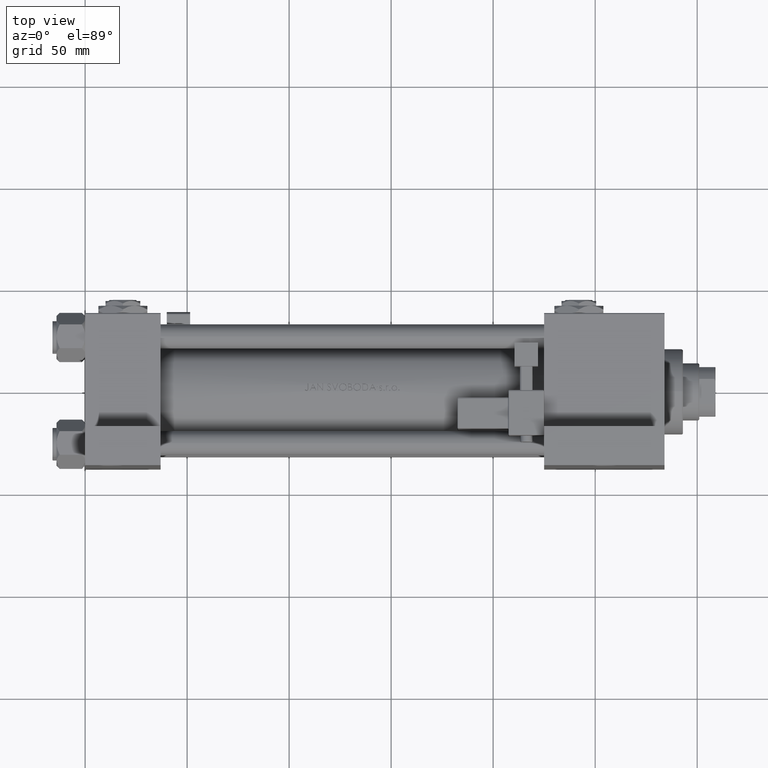
[diagram: clean part render]
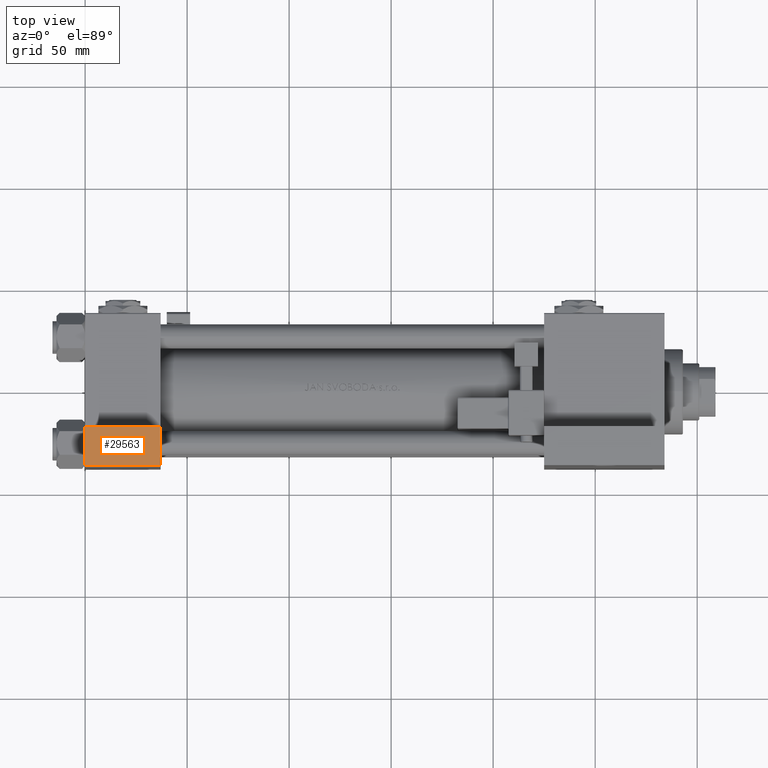
[diagram: same view with one face highlighted and labeled with its STEP entity id]
A machine part, top view. The second image highlights one B-rep face of the part: STEP entity #29563.
In plain terms, the highlighted planar face has unit normal (0, 0, 1).
Its self-contained STEP definition (entity closure, byte-faithful):
#518 = CARTESIAN_POINT ( 'NONE',  ( 3.977209754999747208E-16, -63.50000000000000000, -18.50000000000000355 ) ) ;
#2055 = VECTOR ( 'NONE', #50263, 1000.000000000000000 ) ;
#3086 = LINE ( 'NONE', #38336, #46052 ) ;
#4936 = ORIENTED_EDGE ( 'NONE', *, *, #24443, .T. ) ;
#5584 = VERTEX_POINT ( 'NONE', #50687 ) ;
#6881 = CARTESIAN_POINT ( 'NONE',  ( 37.00000000000000000, -63.50000000000000000, -18.50000000000000355 ) ) ;
#9403 = VERTEX_POINT ( 'NONE', #6881 ) ;
#16309 = CARTESIAN_POINT ( 'NONE',  ( 3.977209754999747208E-16, -63.49999999999998579, 26.72167621838007889 ) ) ;
#16529 = ORIENTED_EDGE ( 'NONE', *, *, #28884, .F. ) ;
#18400 = DIRECTION ( 'NONE',  ( 0.000000000000000000, -1.734723475976806848E-16, -1.000000000000000000 ) ) ;
#18650 = CARTESIAN_POINT ( 'NONE',  ( 37.00000000000000000, -63.49999999999998579, 26.72167621838007889 ) ) ;
#20175 = PLANE ( 'NONE',  #20257 ) ;
#20257 = AXIS2_PLACEMENT_3D ( 'NONE', #16309, #48179, #31865 ) ;
#22314 = LINE ( 'NONE', #23055, #2055 ) ;
#22488 = ORIENTED_EDGE ( 'NONE', *, *, #33879, .F. ) ;
#23055 = CARTESIAN_POINT ( 'NONE',  ( 3.977209754999747208E-16, -63.49999999999998579, 26.72167621838007889 ) ) ;
#24443 = EDGE_CURVE ( 'NONE', #5584, #39087, #22314, .T. ) ;
#27743 = EDGE_CURVE ( 'NONE', #41846, #39087, #3086, .T. ) ;
#28884 = EDGE_CURVE ( 'NONE', #5584, #9403, #36026, .T. ) ;
#29563 = ADVANCED_FACE ( 'NONE', ( #43516 ), #20175, .T. ) ;
#30166 = CARTESIAN_POINT ( 'NONE',  ( 37.00000000000000000, -63.50000000000000000, -37.49999999999999289 ) ) ;
#30815 = DIRECTION ( 'NONE',  ( -1.000000000000000000, -0.000000000000000000, -0.000000000000000000 ) ) ;
#31047 = VECTOR ( 'NONE', #48202, 1000.000000000000000 ) ;
#31865 = DIRECTION ( 'NONE',  ( 0.000000000000000000, -1.734723475976806848E-16, -1.000000000000000000 ) ) ;
#33879 = EDGE_CURVE ( 'NONE', #9403, #41846, #46874, .T. ) ;
#34917 = CARTESIAN_POINT ( 'NONE',  ( 3.977209754999747208E-16, -63.50000000000000000, -37.49999999999999289 ) ) ;
#36026 = LINE ( 'NONE', #518, #31047 ) ;
#38336 = CARTESIAN_POINT ( 'NONE',  ( 3.977209754999747208E-16, -63.50000000000000000, -37.49999999999999289 ) ) ;
#38641 = VECTOR ( 'NONE', #18400, 1000.000000000000000 ) ;
#39087 = VERTEX_POINT ( 'NONE', #34917 ) ;
#41846 = VERTEX_POINT ( 'NONE', #30166 ) ;
#43516 = FACE_OUTER_BOUND ( 'NONE', #48368, .T. ) ;
#46052 = VECTOR ( 'NONE', #30815, 1000.000000000000000 ) ;
#46874 = LINE ( 'NONE', #18650, #38641 ) ;
#48179 = DIRECTION ( 'NONE',  ( 0.000000000000000000, -1.000000000000000000, 1.734723475976806848E-16 ) ) ;
#48202 = DIRECTION ( 'NONE',  ( 1.000000000000000000, 0.000000000000000000, 0.000000000000000000 ) ) ;
#48368 = EDGE_LOOP ( 'NONE', ( #16529, #4936, #49808, #22488 ) ) ;
#49808 = ORIENTED_EDGE ( 'NONE', *, *, #27743, .F. ) ;
#50263 = DIRECTION ( 'NONE',  ( 0.000000000000000000, -1.734723475976806848E-16, -1.000000000000000000 ) ) ;
#50687 = CARTESIAN_POINT ( 'NONE',  ( 3.977209754999747208E-16, -63.50000000000000000, -18.50000000000000355 ) ) ;